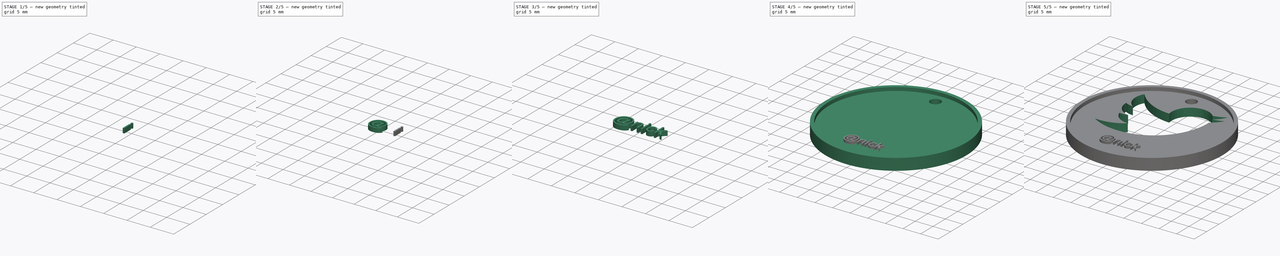
[diagram: build sequence overview — one tinted view per stage of 5, left to right]
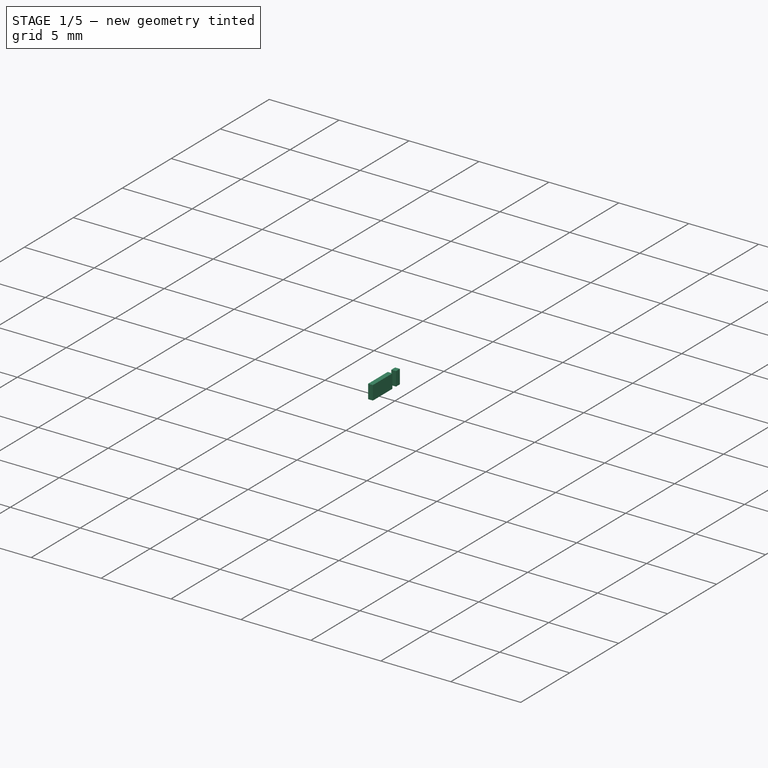
[diagram: stage 1 of 5 — iso view after this stage's code; geometry added in this stage tinted green]
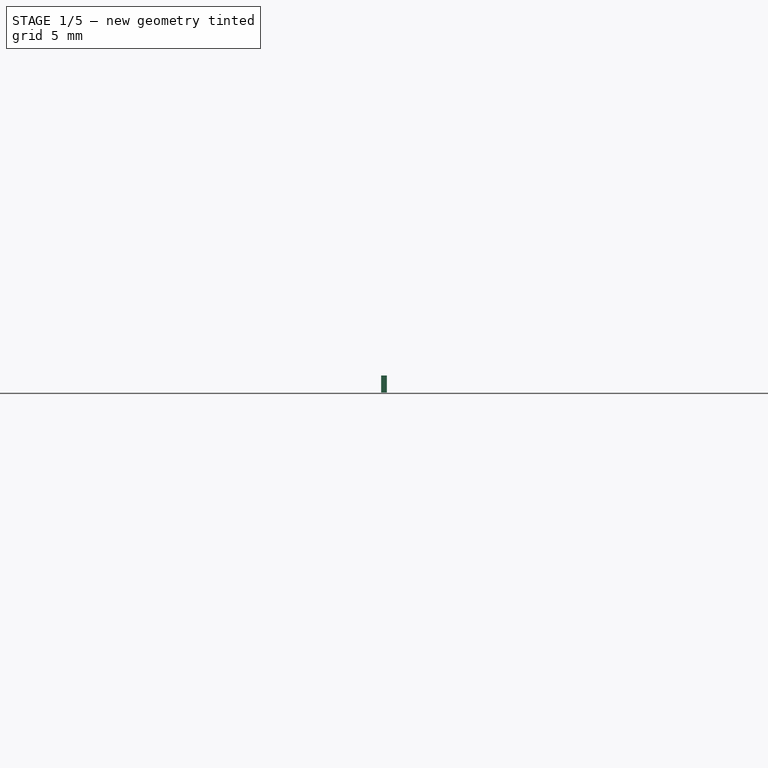
[diagram: stage 1 of 5 — front view after this stage's code; geometry added in this stage tinted green]
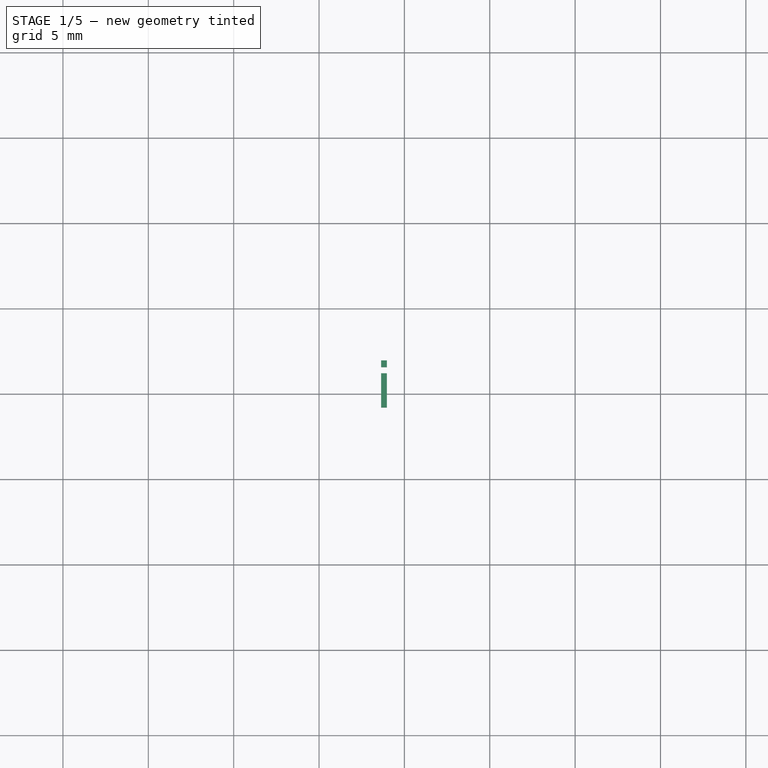
[diagram: stage 1 of 5 — top view after this stage's code; geometry added in this stage tinted green]
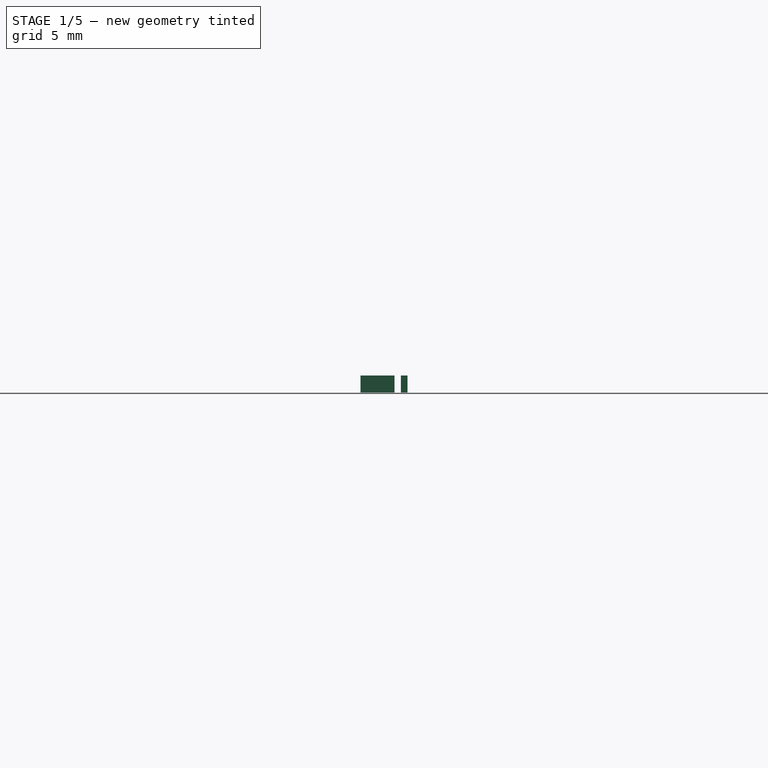
[diagram: stage 1 of 5 — right view after this stage's code; geometry added in this stage tinted green]
FCSTD DOCUMENT  (FreeCAD 0.15R4630 (Git))
Label: twitter-keychain-v1
License: All rights reserved
LicenseURL: http://en.wikipedia.org/wiki/All_rights_reserved
objects: Part::Feature×10, Part::Extrusion×8, Sketcher::SketchObject×3, Part::MultiFuse×3, PartDesign::Pocket×2, Part::Cut×2, App::DocumentObjectGroup×2, PartDesign::Pad×1
note: 32 computed .brp shape members not serialized (recipe doc carries the construction recipe); baked Part::Feature solids carry a one-line shape summary decoded from their .brp

FEATURE [Part::Extrusion] Extrude006
  Base = -> path3037
  Dir = (0,0,1)
  Solid = true
FEATURE [Part::Extrusion] Extrude007
  Base = -> path3037001
  Dir = (0,0,1)
  Solid = true
FEATURE [Part::MultiFuse] Fusion  label="i"
  Shapes = -> [Extrude006,Extrude007]
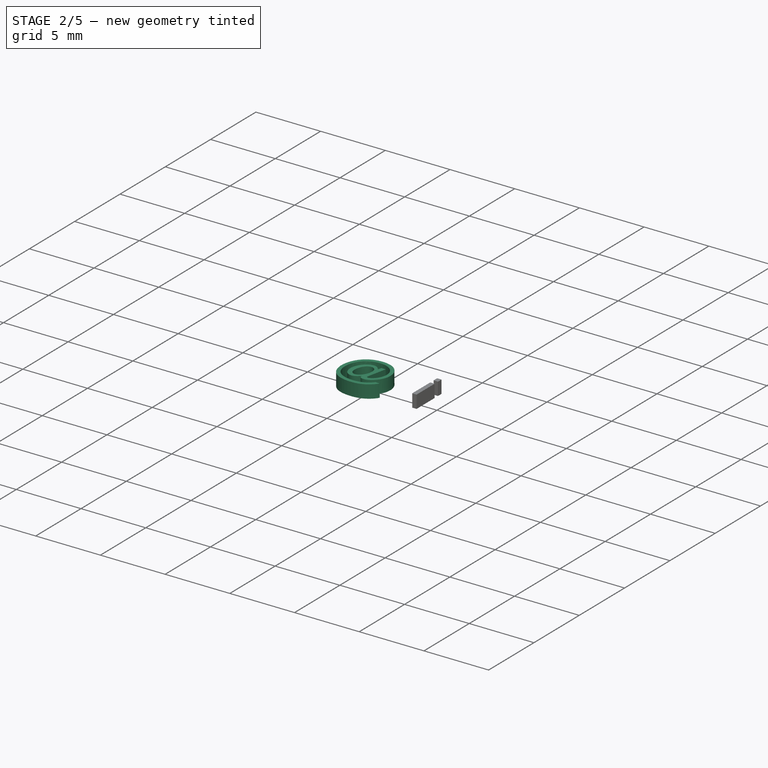
[diagram: stage 2 of 5 — iso view after this stage's code; geometry added in this stage tinted green]
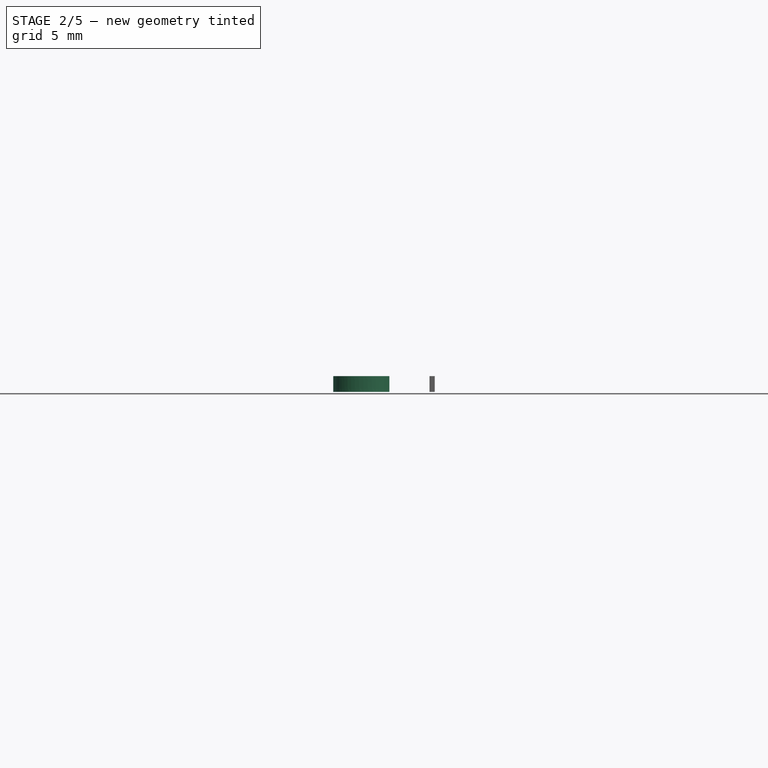
[diagram: stage 2 of 5 — front view after this stage's code; geometry added in this stage tinted green]
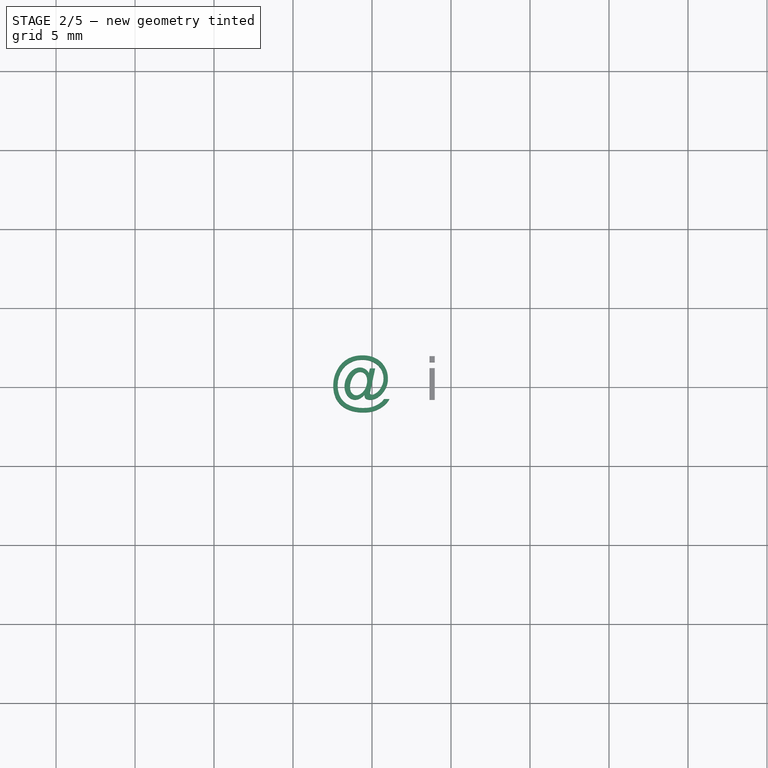
[diagram: stage 2 of 5 — top view after this stage's code; geometry added in this stage tinted green]
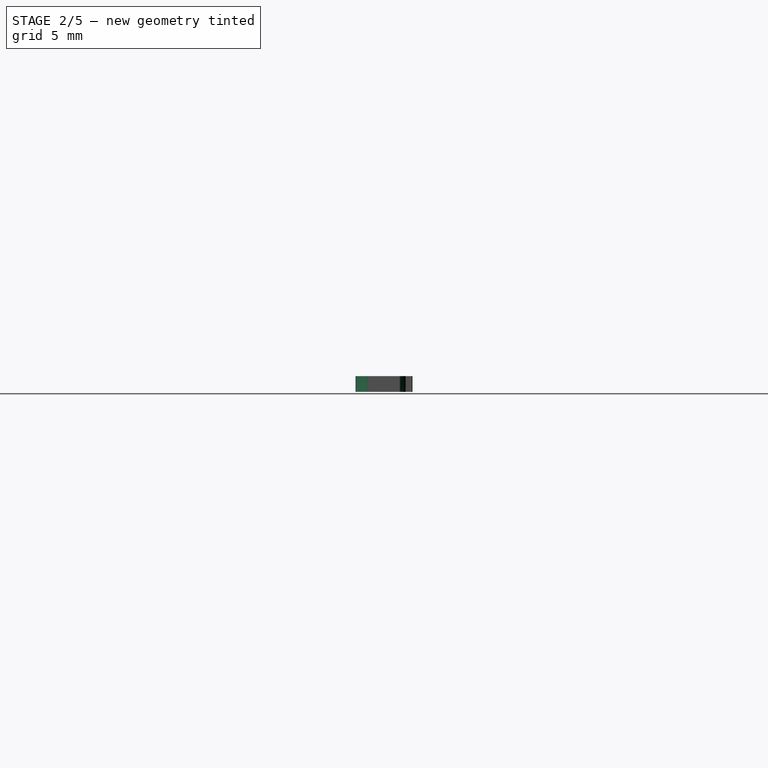
[diagram: stage 2 of 5 — right view after this stage's code; geometry added in this stage tinted green]
FEATURE [Part::Feature] path3033
  shape: bbox 3.555 x 3.611 x 2e-07 mm, 0 faces, 0 solids (baked)
FEATURE [Part::Feature] path3033001
  shape: bbox 1.087 x 1.483 x 2e-07 mm, 0 faces, 0 solids (baked)
FEATURE [Part::Feature] path3035
  shape: bbox 1.62 x 2.038 x 2e-07 mm, 0 faces, 0 solids (baked)
FEATURE [Part::Feature] path3037
  shape: bbox 0.3379 x 0.3886 x 2e-07 mm, 0 faces, 0 solids (baked)
FEATURE [Part::Feature] path3037001
  shape: bbox 0.3379 x 1.993 x 2e-07 mm, 0 faces, 0 solids (baked)
FEATURE [Part::Feature] path3039
  shape: bbox 1.736 x 2.084 x 2e-07 mm, 0 faces, 0 solids (baked)
FEATURE [Part::Feature] path3041
  shape: bbox 1.652 x 2.752 x 2e-07 mm, 0 faces, 0 solids (baked)
FEATURE [Part::Extrusion] Extrude
  Base = -> path3033
  Dir = (0,0,1)
  Solid = true
FEATURE [Part::Extrusion] Extrude004
  Base = -> path3033001
  Dir = (0,0,1)
  Solid = true
FEATURE [Part::Cut] Cut002  label="at"
  Base = -> Extrude
  Tool = -> Extrude004
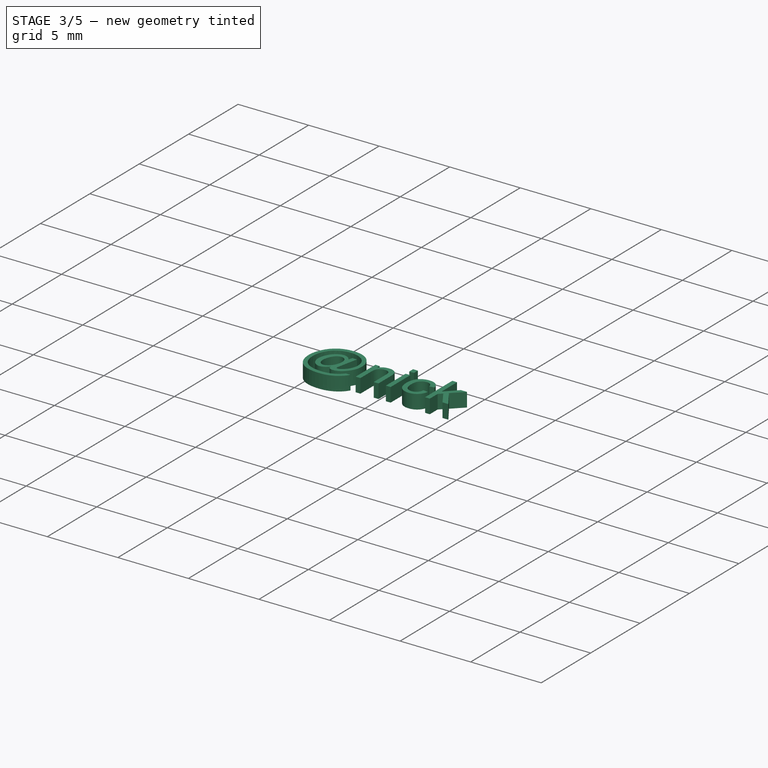
[diagram: stage 3 of 5 — iso view after this stage's code; geometry added in this stage tinted green]
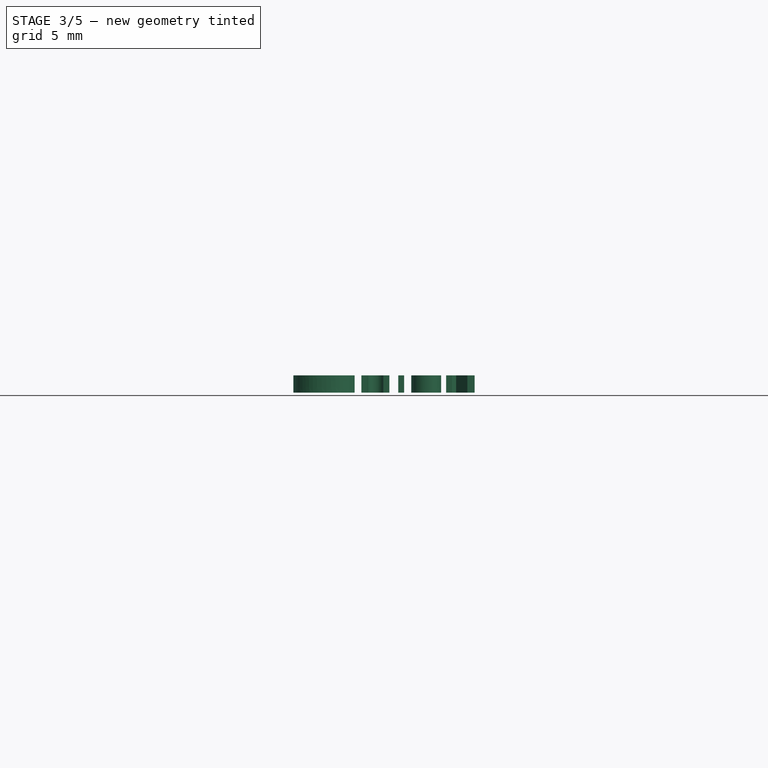
[diagram: stage 3 of 5 — front view after this stage's code; geometry added in this stage tinted green]
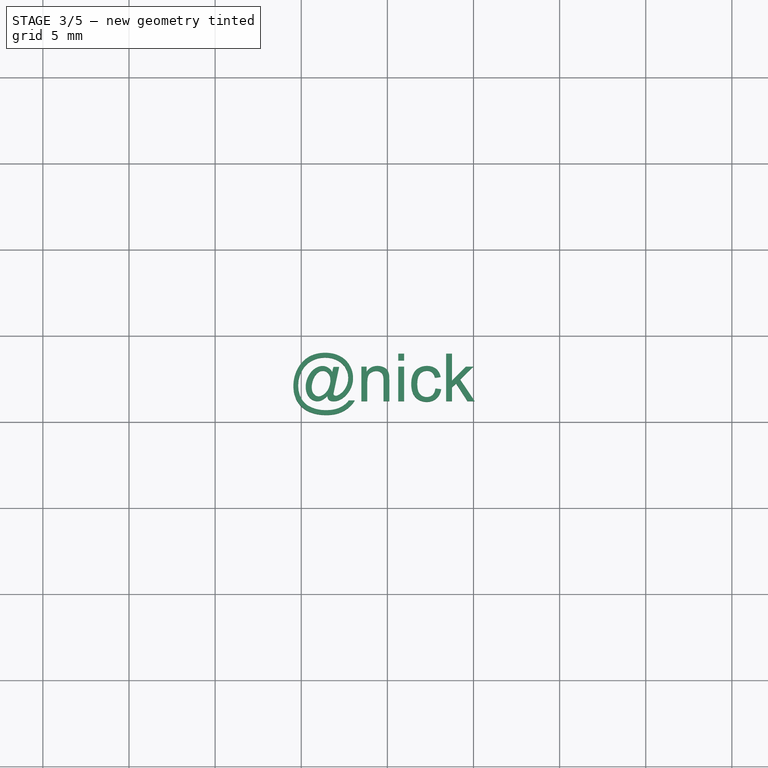
[diagram: stage 3 of 5 — top view after this stage's code; geometry added in this stage tinted green]
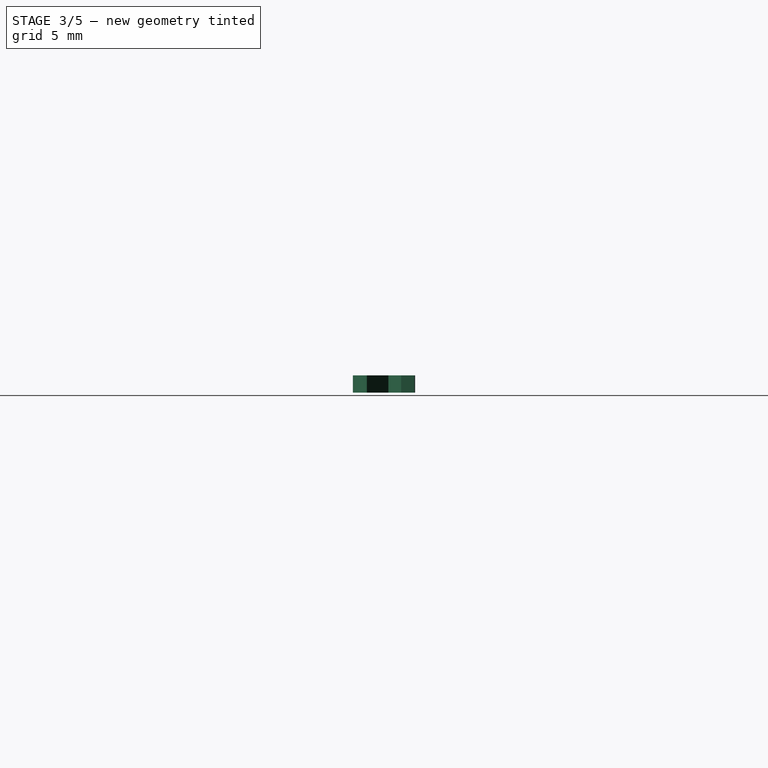
[diagram: stage 3 of 5 — right view after this stage's code; geometry added in this stage tinted green]
FEATURE [Part::Extrusion] Extrude005  label="n"
  Base = -> path3035
  Dir = (0,0,1)
  Solid = true
FEATURE [Part::Extrusion] Extrude008  label="c"
  Base = -> path3039
  Dir = (0,0,1)
  Solid = true
FEATURE [Part::Extrusion] Extrude009  label="k"
  Base = -> path3041
  Dir = (0,0,1)
  Solid = true
FEATURE [Part::MultiFuse] Fusion001  label="Letters"
  Placement = pos=(2,-13,2) rot=(0,0,1;0rad)
  Shapes = -> [Fusion,Extrude008,Extrude005,Extrude009,Cut002]
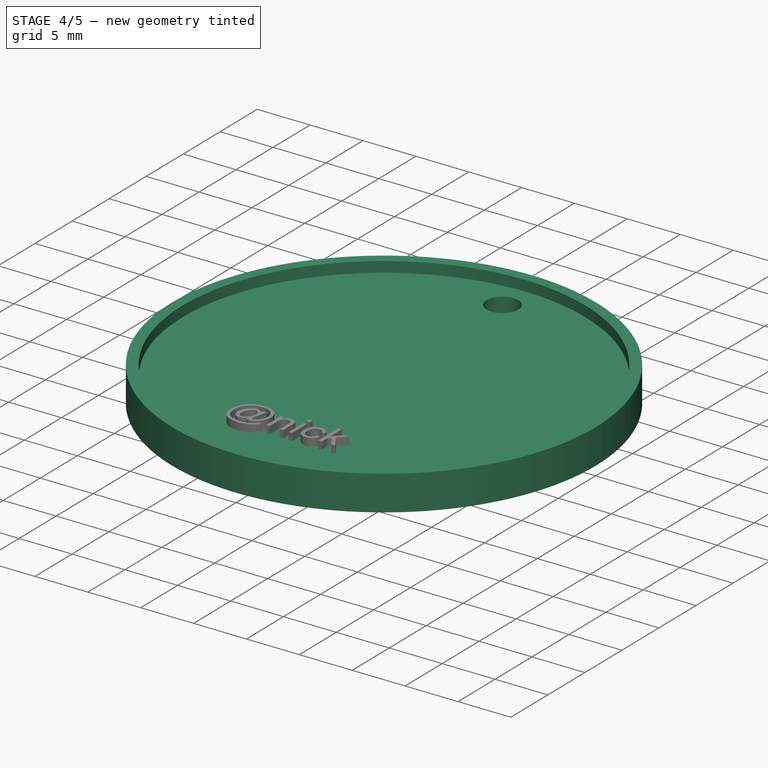
[diagram: stage 4 of 5 — iso view after this stage's code; geometry added in this stage tinted green]
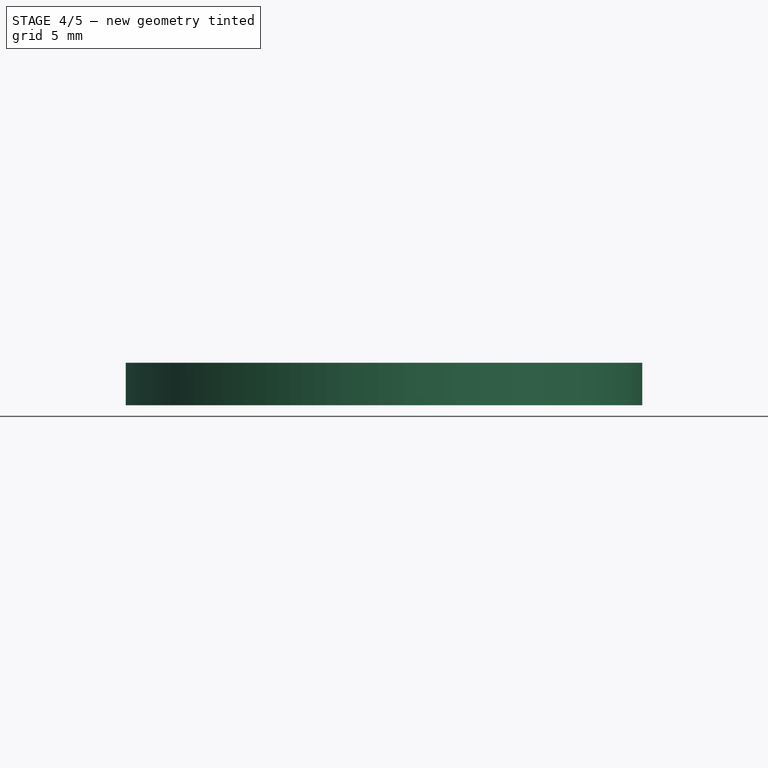
[diagram: stage 4 of 5 — front view after this stage's code; geometry added in this stage tinted green]
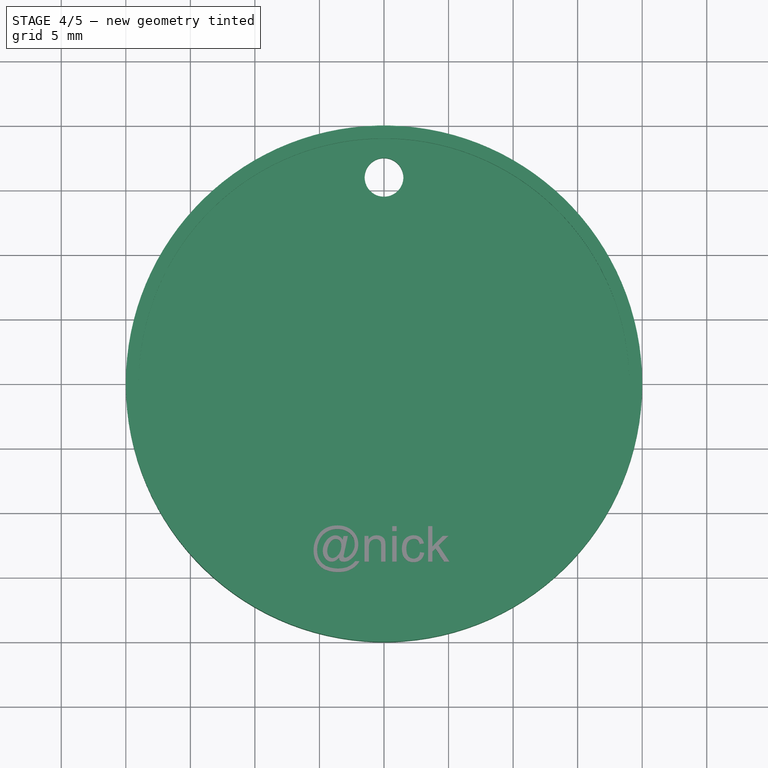
[diagram: stage 4 of 5 — top view after this stage's code; geometry added in this stage tinted green]
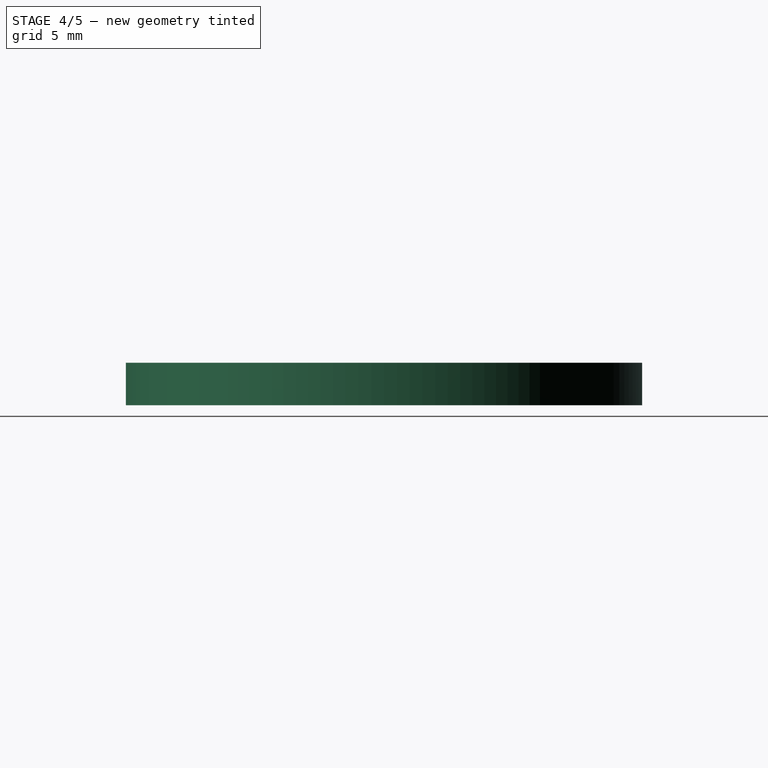
[diagram: stage 4 of 5 — right view after this stage's code; geometry added in this stage tinted green]
FEATURE [Sketcher::SketchObject] Sketch  label="keychain-main-body-sketch"
  sketch-geometry (1):
    g0: Circle CenterX=0 CenterY=0 CenterZ=0 NormalX=0 NormalY=0 NormalZ=1 Radius=20
  constraints (2):
    c: Coincident(g0,g-1)
    c: Radius(g0) = 20
FEATURE [PartDesign::Pad] Pad  label="keychain-main-body"
  Length = 3.3
  Length2 = 100
  Sketch = -> Sketch
  Type = 0
FEATURE [Sketcher::SketchObject] Sketch001  label="keychain-edge-sketch"
  Placement = pos=(0,0,3.3) rot=(0,0,1;0rad)
  Support = -> Pad [Face3]
  sketch-geometry (1):
    g0: Circle CenterX=0 CenterY=0 CenterZ=0 NormalX=0 NormalY=0 NormalZ=1 Radius=19
  constraints (2):
    c: Coincident(g-1,g0)
    c: Radius(g0) = 19
FEATURE [PartDesign::Pocket] Pocket  label="keychain-edge"
  Length = 1
  Sketch = -> Sketch001
  Type = 0
FEATURE [Sketcher::SketchObject] Sketch002  label="hole-sketch"
  Placement = pos=(0,0,2.3) rot=(0,0,1;0rad)
  Support = -> Pocket [Face5]
  sketch-geometry (1):
    g0: Circle CenterX=0 CenterY=16 CenterZ=0 NormalX=0 NormalY=0 NormalZ=1 Radius=1.5
  constraints (3):
    c: PointOnObject(g0,g-2)
    c: Radius(g0) = 1.5
    c: Distance(g-1,g0) = 16
FEATURE [PartDesign::Pocket] Pocket001  label="keychain-body"
  Length = 5
  Sketch = -> Sketch002
  Type = 1
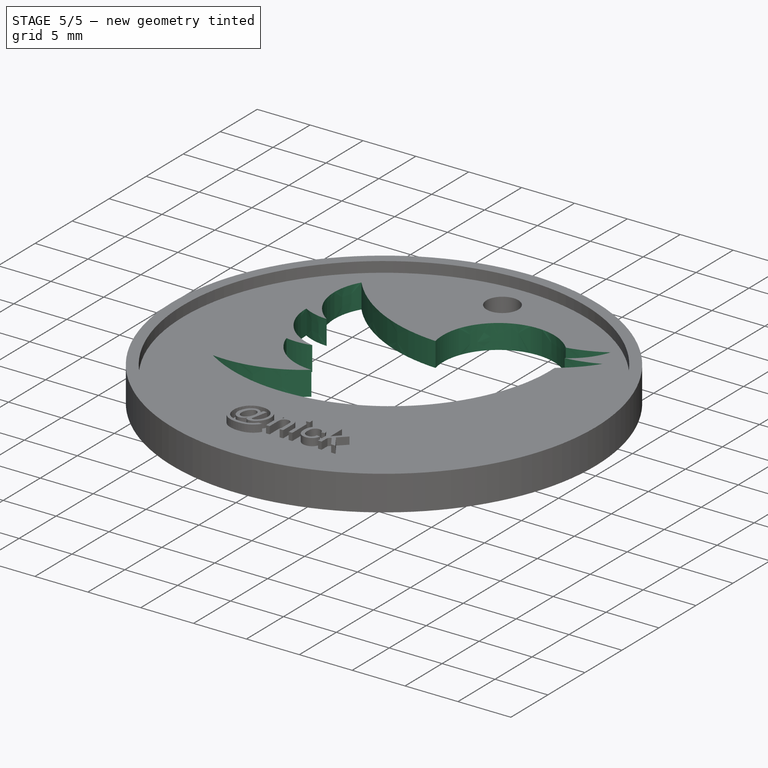
[diagram: stage 5 of 5 — iso view after this stage's code; geometry added in this stage tinted green]
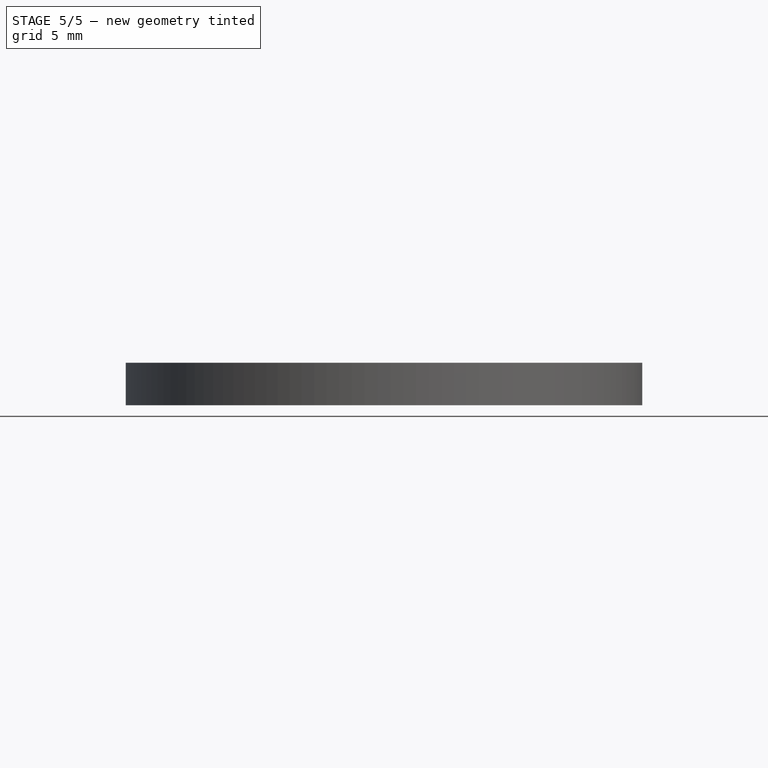
[diagram: stage 5 of 5 — front view after this stage's code; geometry added in this stage tinted green]
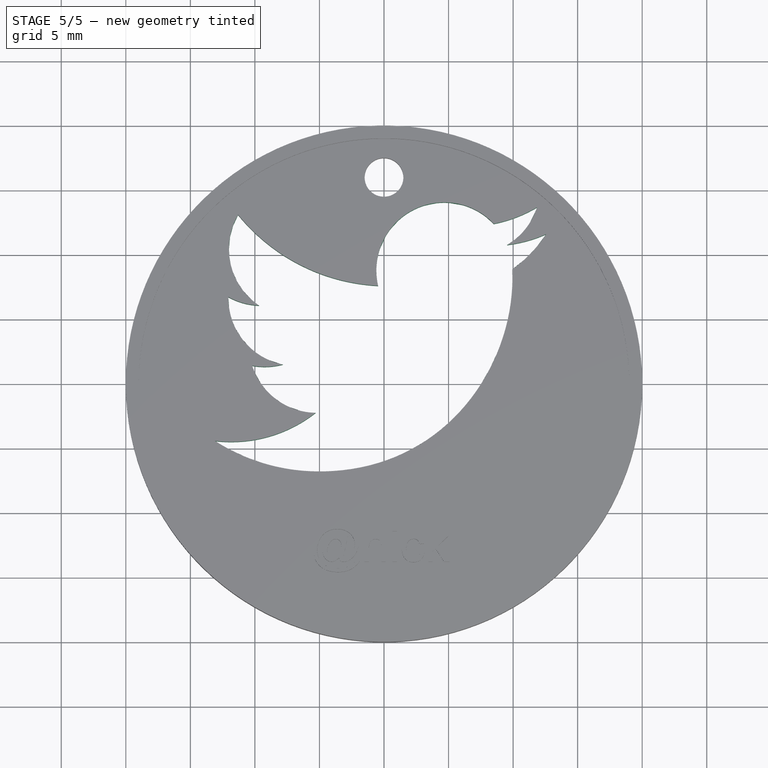
[diagram: stage 5 of 5 — top view after this stage's code; geometry added in this stage tinted green]
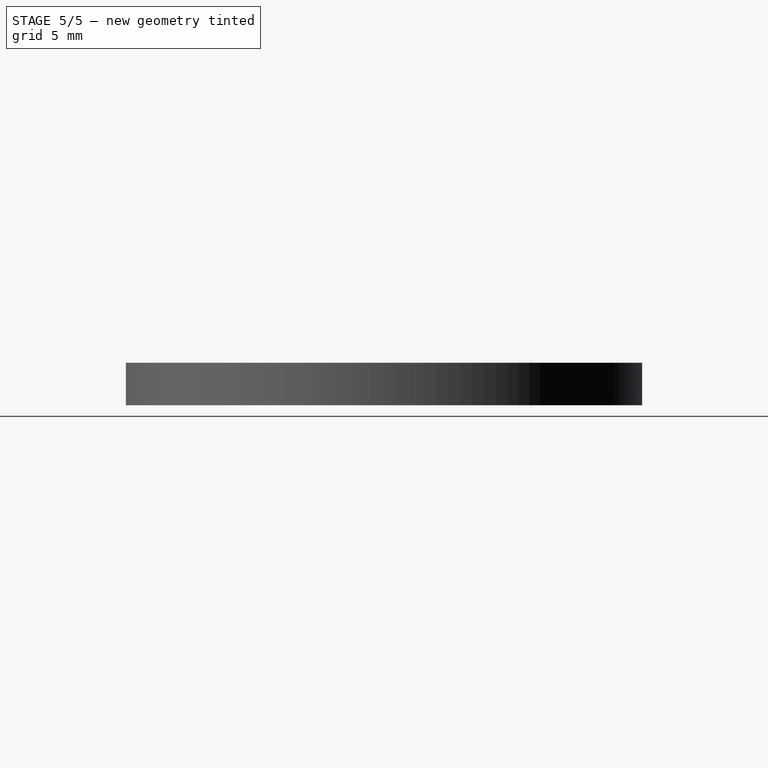
[diagram: stage 5 of 5 — right view after this stage's code; geometry added in this stage tinted green]
FEATURE [Part::Feature] Sweep  label="key-ring-model-1"
  Placement = pos=(-1.2,24.7546,1.6391) rot=(0.333333,0.881918,0.333333;1.69612rad)
  shape: bbox 3.31 x 27.02 x 26.33 mm, 4 faces (baked)
FEATURE [Part::Feature] Cut  label="key-model-1"
  Placement = pos=(-5.46976,31.0266,0) rot=(0,0,1;0.517888rad)
  shape: bbox 49.82 x 36.6 x 2.3 mm, 44 faces (baked)
FEATURE [Part::Feature] path8
  shape: bbox 25.65 x 20.95 x 2e-07 mm, 1 faces, 0 solids (baked)
FEATURE [Part::Extrusion] Extrude003  label="Twitter"
  Base = -> path8
  Dir = (0,0,5)
  Placement = pos=(-41,6,-1) rot=(0,0,1;0rad)
  Solid = true
FEATURE [Part::Cut] Cut001  label="keychain-cut"
  Base = -> Pocket001
  Tool = -> Extrude003
FEATURE [App::DocumentObjectGroup] Grupo  label="Key"
  Group = -> [Cut,Sweep]
FEATURE [Part::MultiFuse] Fusion002  label="keychain-final"
  Shapes = -> [Cut001,Fusion001]
FEATURE [App::DocumentObjectGroup] Grupo001  label="Keychain"
  Group = -> [Pad,Pocket,Fusion002]
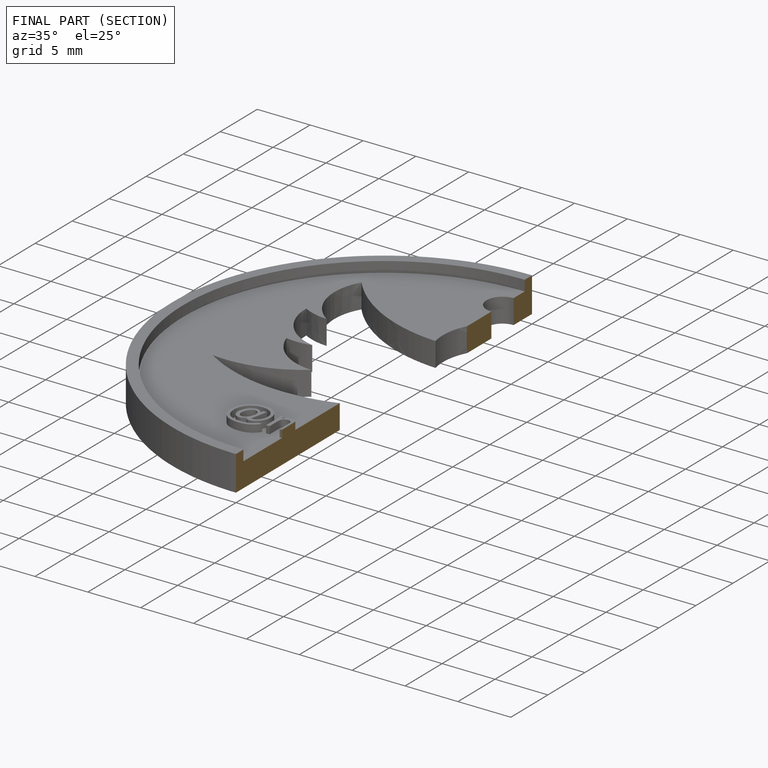
[diagram: finished part — half-section view (interior)]
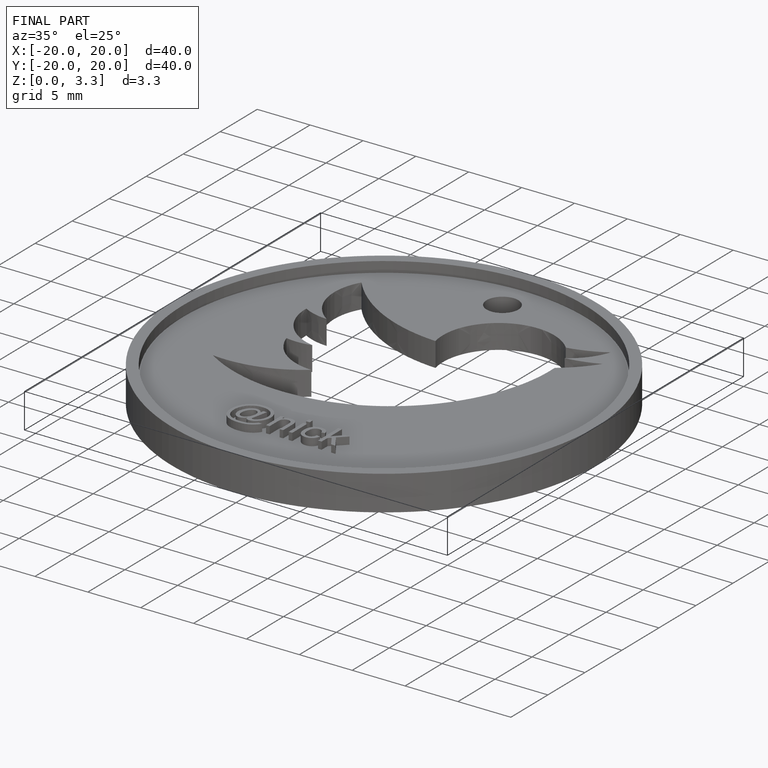
[diagram: finished part — iso view with bounding-box wireframe]
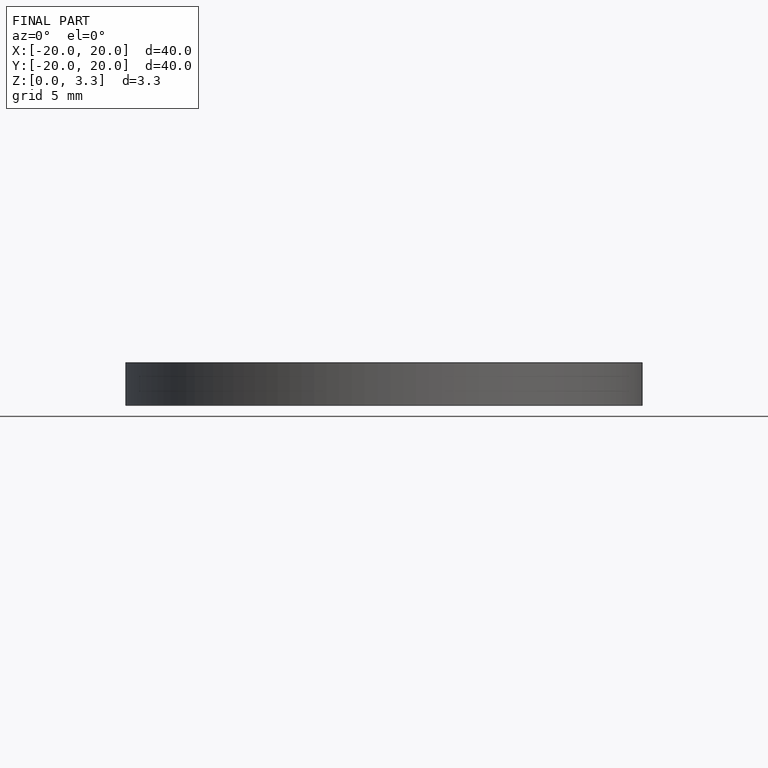
[diagram: finished part — front view with bounding-box wireframe]
